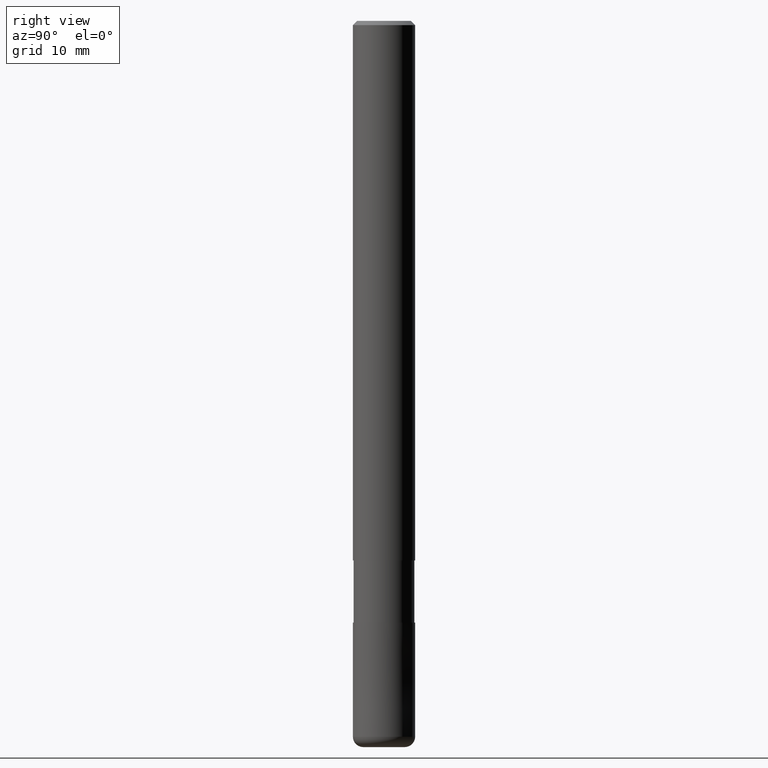
[diagram: clean part render]
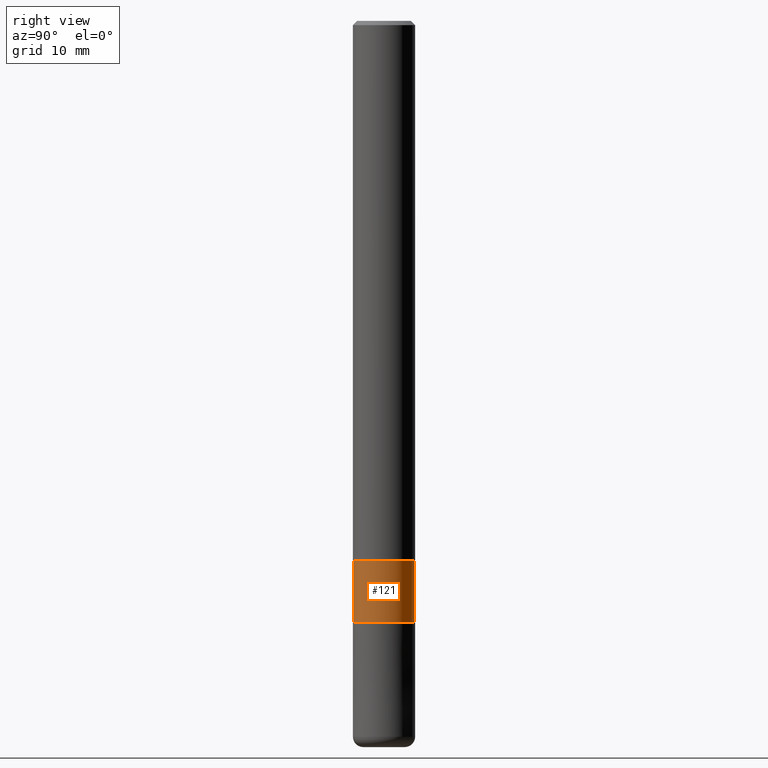
[diagram: same view with one face highlighted and labeled with its STEP entity id]
A machine part, right view. The second image highlights one B-rep face of the part: STEP entity #121.
In plain terms, the highlighted cylindrical surface (edge-blend (fillet) strip) has radius 2.9249 mm, axis along (-0, -0, 1).
Its self-contained STEP definition (entity closure, byte-faithful):
#121=ADVANCED_FACE('',(#309),#310,.T.);
#137=VERTEX_POINT('',#328);
#143=EDGE_CURVE('',#137,#165,#335,.T.);
#149=VERTEX_POINT('',#344);
#163=EDGE_CURVE('',#149,#279,#359,.T.);
#165=VERTEX_POINT('',#361);
#235=EDGE_CURVE('',#149,#137,#442,.T.);
#237=EDGE_CURVE('',#165,#279,#444,.T.);
#279=VERTEX_POINT('',#490);
#309=FACE_OUTER_BOUND('',#513,.T.);
#310=CYLINDRICAL_SURFACE('',#514,2.92495);
#328=CARTESIAN_POINT('',(0.0,2.92495,-58.0));
#335=CIRCLE('',#547,2.92495);
#344=CARTESIAN_POINT('',(0.0,2.92495,-52.0));
#359=CIRCLE('',#575,2.92495);
#361=CARTESIAN_POINT('',(3.58191235461276E-016,-2.92495,-58.0));
#442=LINE('',#679,#680);
#444=LINE('',#683,#684);
#490=CARTESIAN_POINT('',(3.58191235461276E-016,-2.92495,-52.0));
#513=EDGE_LOOP('',(#759,#760,#761,#762));
#514=AXIS2_PLACEMENT_3D('',#763,#764,#765);
#547=AXIS2_PLACEMENT_3D('',#801,#802,#803);
#575=AXIS2_PLACEMENT_3D('',#837,#838,#839);
#679=CARTESIAN_POINT('',(-3.58191235461276E-016,2.92495,-55.0));
#680=VECTOR('',#940,1.0);
#683=CARTESIAN_POINT('',(3.58191235461276E-016,-2.92495,-55.0));
#684=VECTOR('',#941,1.0);
#759=ORIENTED_EDGE('',*,*,#235,.F.);
#760=ORIENTED_EDGE('',*,*,#163,.T.);
#761=ORIENTED_EDGE('',*,*,#237,.F.);
#762=ORIENTED_EDGE('',*,*,#143,.F.);
#763=CARTESIAN_POINT('',(0.0,0.0,-55.0));
#764=DIRECTION('',(-0.0,-0.0,1.0));
#765=DIRECTION('',(0.0,1.0,0.0));
#801=CARTESIAN_POINT('',(0.0,0.0,-58.0));
#802=DIRECTION('',(0.0,0.0,-1.0));
#803=DIRECTION('',(0.0,1.0,0.0));
#837=CARTESIAN_POINT('',(0.0,0.0,-52.0));
#838=DIRECTION('',(0.0,0.0,-1.0));
#839=DIRECTION('',(0.0,1.0,0.0));
#940=DIRECTION('',(0.0,0.0,-1.0));
#941=DIRECTION('',(-0.0,-0.0,1.0));